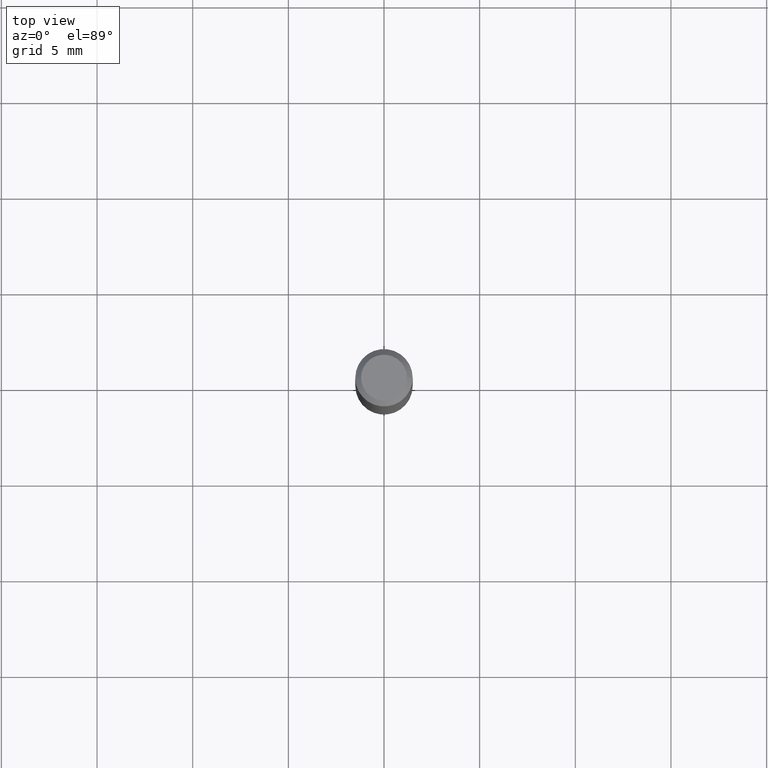
[diagram: clean part render]
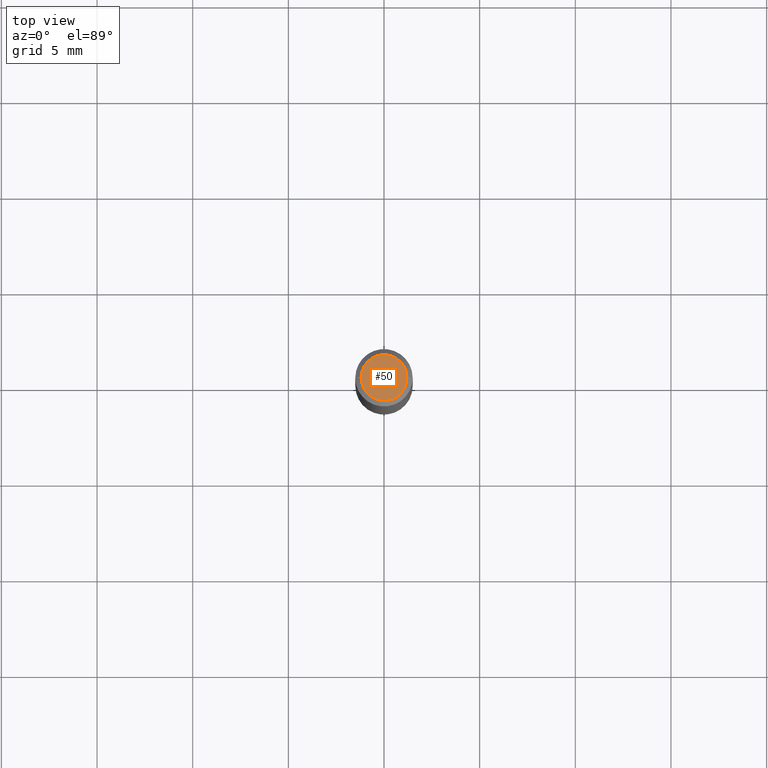
[diagram: same view with one face highlighted and labeled with its STEP entity id]
A machine part, top view. The second image highlights one B-rep face of the part: STEP entity #50.
In plain terms, the highlighted planar face has unit normal (0, -0, -1).
Its self-contained STEP definition (entity closure, byte-faithful):
#12 = CARTESIAN_POINT ( 'NONE',  ( -0.04724000000000000421, 3.504923541997677355E-16, -3.380025165670481712E-19 ) ) ;
#20 = ORIENTED_EDGE ( 'NONE', *, *, #435, .T. ) ;
#29 = AXIS2_PLACEMENT_3D ( 'NONE', #230, #186, #416 ) ;
#36 = CIRCLE ( 'NONE', #181, 0.04724000000000000421 ) ;
#41 = DIRECTION ( 'NONE',  ( 1.000000000000000000, -6.982962677686266711E-15, 4.876185090822587894E-29 ) ) ;
#50 = ADVANCED_FACE ( 'NONE', ( #189 ), #68, .F. ) ;
#67 = VERTEX_POINT ( 'NONE', #259 ) ;
#68 = PLANE ( 'NONE',  #29 ) ;
#177 = EDGE_LOOP ( 'NONE', ( #20, #414 ) ) ;
#181 = AXIS2_PLACEMENT_3D ( 'NONE', #241, #265, #396 ) ;
#186 = DIRECTION ( 'NONE',  ( 2.438088387897960049E-29, -3.491481338843145188E-15, -1.000000000000000000 ) ) ;
#189 = FACE_OUTER_BOUND ( 'NONE', #177, .T. ) ;
#230 = CARTESIAN_POINT ( 'NONE',  ( 4.132873053354867254E-48, -5.900647395337818946E-34, -1.690012582823346072E-19 ) ) ;
#241 = CARTESIAN_POINT ( 'NONE',  ( 8.265746106709734507E-48, -1.180129479067563789E-33, -3.380025165646692144E-19 ) ) ;
#253 = VERTEX_POINT ( 'NONE', #12 ) ;
#259 = CARTESIAN_POINT ( 'NONE',  ( 0.04724000000000000421, -3.852183633974369345E-16, -3.380025165621689721E-19 ) ) ;
#265 = DIRECTION ( 'NONE',  ( -2.445468806185136597E-29, 3.491481338843145583E-15, 1.000000000000000000 ) ) ;
#277 = AXIS2_PLACEMENT_3D ( 'NONE', #339, #307, #41 ) ;
#307 = DIRECTION ( 'NONE',  ( -2.445468806185136597E-29, 3.491481338843145583E-15, 1.000000000000000000 ) ) ;
#339 = CARTESIAN_POINT ( 'NONE',  ( 8.265746106709734507E-48, -1.180129479067563789E-33, -3.380025165646692144E-19 ) ) ;
#396 = DIRECTION ( 'NONE',  ( 1.000000000000000000, -6.982962677686266711E-15, 4.876185090822587894E-29 ) ) ;
#414 = ORIENTED_EDGE ( 'NONE', *, *, #486, .T. ) ;
#416 = DIRECTION ( 'NONE',  ( -1.000000000000000000, 6.982962677686265922E-15, -4.876176775795935793E-29 ) ) ;
#435 = EDGE_CURVE ( 'NONE', #253, #67, #465, .T. ) ;
#465 = CIRCLE ( 'NONE', #277, 0.04724000000000000421 ) ;
#486 = EDGE_CURVE ( 'NONE', #67, #253, #36, .T. ) ;